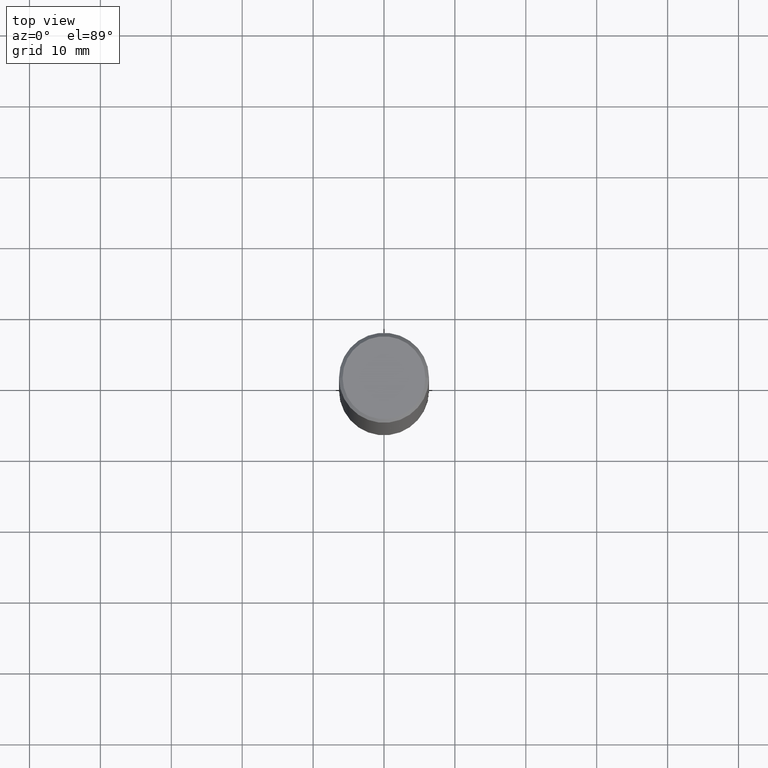
[diagram: clean part render]
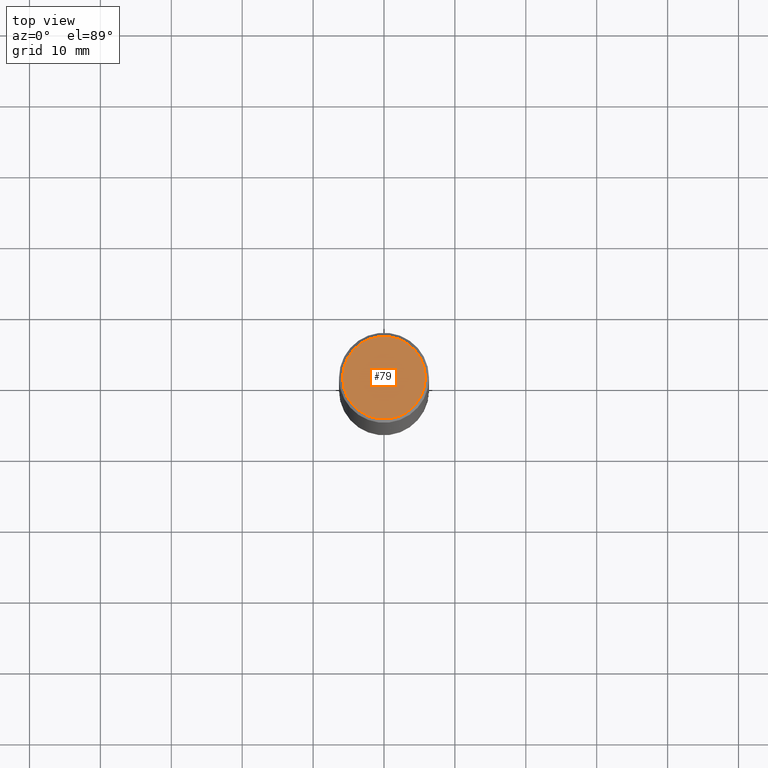
[diagram: same view with one face highlighted and labeled with its STEP entity id]
A machine part, top view. The second image highlights one B-rep face of the part: STEP entity #79.
In plain terms, the highlighted planar face has unit normal (0, -0, -1).
Its self-contained STEP definition (entity closure, byte-faithful):
#1 = DIRECTION ( 'NONE',  ( 1.000000000000000000, -6.982962677686266711E-15, 4.876225828469314487E-29 ) ) ;
#22 = FACE_OUTER_BOUND ( 'NONE', #41, .T. ) ;
#32 = ORIENTED_EDGE ( 'NONE', *, *, #91, .T. ) ;
#39 = VERTEX_POINT ( 'NONE', #331 ) ;
#41 = EDGE_LOOP ( 'NONE', ( #239, #32 ) ) ;
#52 = CARTESIAN_POINT ( 'NONE',  ( -0.2299999999999997324, 1.640996229256270744E-15, 4.268512490089056766E-18 ) ) ;
#79 = ADVANCED_FACE ( 'NONE', ( #22 ), #201, .F. ) ;
#86 = CARTESIAN_POINT ( 'NONE',  ( -1.043851414335219820E-46, 1.490343170380447200E-32, 4.268512490100411279E-18 ) ) ;
#88 = DIRECTION ( 'NONE',  ( -2.445468806185136597E-29, 3.491481338843145583E-15, 1.000000000000000000 ) ) ;
#91 = EDGE_CURVE ( 'NONE', #39, #156, #283, .T. ) ;
#125 = EDGE_CURVE ( 'NONE', #156, #39, #143, .T. ) ;
#139 = CARTESIAN_POINT ( 'NONE',  ( -1.043851414335219820E-46, 1.490343170380447200E-32, 4.268512490100411279E-18 ) ) ;
#143 = CIRCLE ( 'NONE', #360, 0.2299999999999997324 ) ;
#148 = AXIS2_PLACEMENT_3D ( 'NONE', #139, #307, #1 ) ;
#156 = VERTEX_POINT ( 'NONE', #52 ) ;
#196 = DIRECTION ( 'NONE',  ( -1.000000000000000000, 6.982962677686265922E-15, -4.876176775795935793E-29 ) ) ;
#201 = PLANE ( 'NONE',  #311 ) ;
#218 = DIRECTION ( 'NONE',  ( 2.438088387897960049E-29, -3.491481338843145188E-15, -1.000000000000000000 ) ) ;
#239 = ORIENTED_EDGE ( 'NONE', *, *, #125, .T. ) ;
#245 = CARTESIAN_POINT ( 'NONE',  ( 1.606081415867839292E-15, 0.2299999999999997324, -8.009064516888723911E-16 ) ) ;
#283 = CIRCLE ( 'NONE', #148, 0.2299999999999997324 ) ;
#307 = DIRECTION ( 'NONE',  ( -2.445468806185136597E-29, 3.491481338843145583E-15, 1.000000000000000000 ) ) ;
#311 = AXIS2_PLACEMENT_3D ( 'NONE', #245, #218, #196 ) ;
#331 = CARTESIAN_POINT ( 'NONE',  ( 0.2299999999999997324, -1.681434332853597433E-15, 4.268512490111905999E-18 ) ) ;
#348 = DIRECTION ( 'NONE',  ( 1.000000000000000000, -6.982962677686266711E-15, 4.876225828469314487E-29 ) ) ;
#360 = AXIS2_PLACEMENT_3D ( 'NONE', #86, #88, #348 ) ;